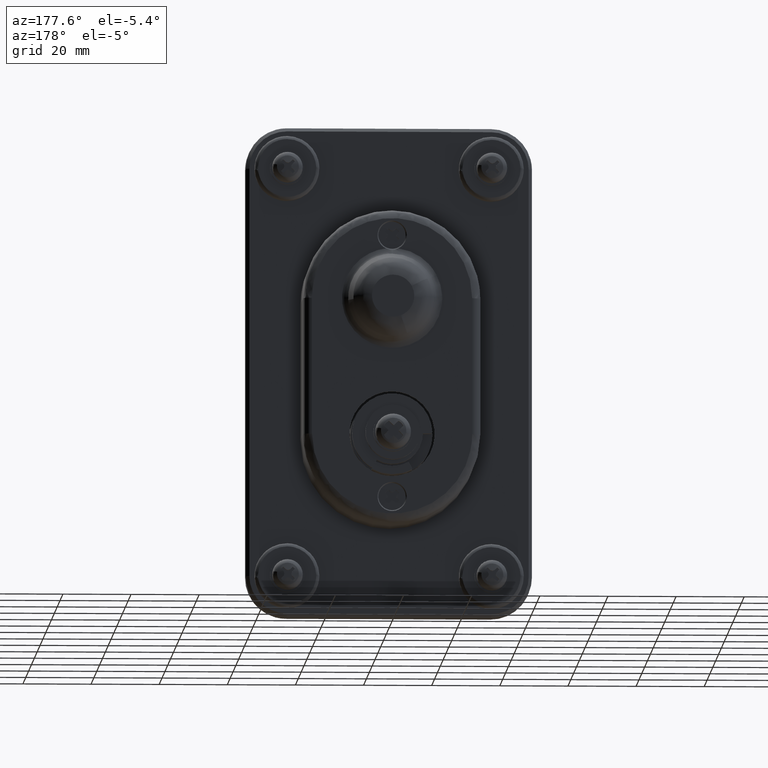
[diagram: clean part render]
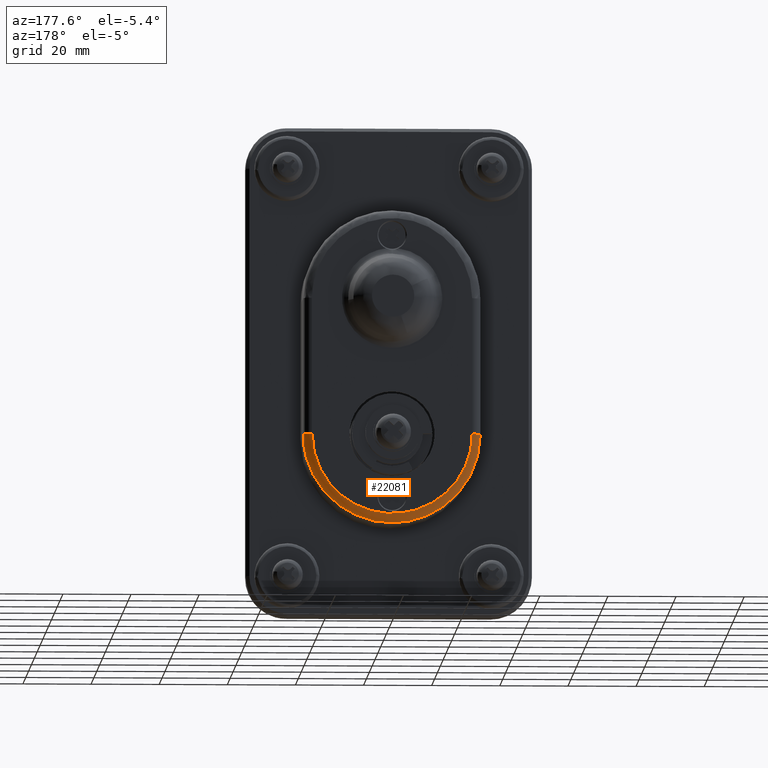
[diagram: same view with one face highlighted and labeled with its STEP entity id]
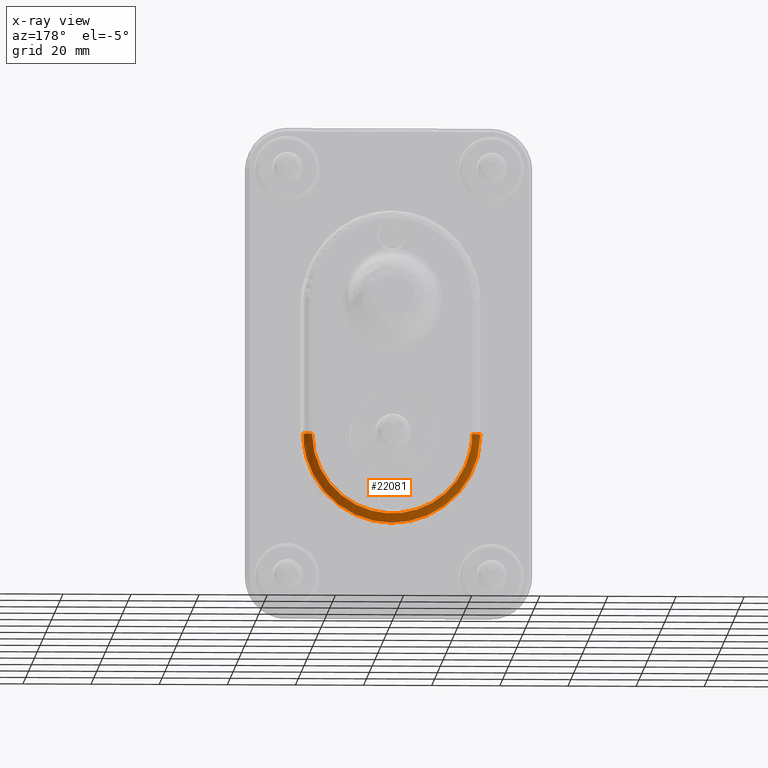
[diagram: x-ray of the same camera — body ghosted, the highlighted face saturated]
A machine part, auxiliary view. The second image highlights one B-rep face of the part: STEP entity #22081.
The next image is the same camera in x-ray: the body ghosted, the highlighted face saturated — about 0% of this face is hidden behind the body in this view.
In plain terms, the highlighted face is a freeform B-spline surface patch.
Its self-contained STEP definition (entity closure, byte-faithful):
#21992=CARTESIAN_POINT('',(-0.006084245505832,23.089522475517068,3.310851038810661));
#21993=CARTESIAN_POINT('',(-0.006084245505832,26.884830832791586,-23.157225171723020));
#21994=CARTESIAN_POINT('',(-0.006084245505832,0.146558664227062,-23.325228901398205));
#21995=CARTESIAN_POINT('',(-0.006084245505832,-26.913933211671047,-23.495257223846824));
#21996=CARTESIAN_POINT('',(-0.006084245505832,-23.091861687275141,3.294496404329445));
#21997=CARTESIAN_POINT('',(0.194348338898123,25.928138161891571,3.717885601953565));
#21998=CARTESIAN_POINT('',(0.194348338898123,30.190040050887760,-26.004164197651178));
#21999=CARTESIAN_POINT('',(0.194348338898123,0.164576521612391,-26.192822231586341));
#22000=CARTESIAN_POINT('',(0.194348338898123,-30.222720263378474,-26.383753760835539));
#22001=CARTESIAN_POINT('',(0.194348338898123,-25.930764955325671,3.699520335938817));
#22002=CARTESIAN_POINT('',(-2.673376474076068,25.730798224456258,3.689588648755501));
#22003=CARTESIAN_POINT('',(-2.673376474076069,29.960262633874070,-25.806245623482972));
#22004=CARTESIAN_POINT('',(-2.673376474076069,0.163323924134611,-25.993467774734182));
#22005=CARTESIAN_POINT('',(-2.673376474076069,-29.992694116159978,-26.182946117649607));
#22006=CARTESIAN_POINT('',(-2.673376474076068,-25.733405025275566,3.671363161402208));
#22014=(BOUNDED_SURFACE()B_SPLINE_SURFACE(2,2,((#21992,#21997,#22002),(#21993,#21998,#22003),(#21994,#21999,#22004),(#21995,#22000,#22005),(#21996,#22001,#22006)),.UNSPECIFIED.,.F.,.F.,.U.)B_SPLINE_SURFACE_WITH_KNOTS((3,2,3),(3,3),(0.0,47.276673621202740,94.924064125560420),(0.0,4.555926112079249),.UNSPECIFIED.)GEOMETRIC_REPRESENTATION_ITEM()RATIONAL_B_SPLINE_SURFACE(((0.902826940689574,0.594105060915144,0.907855665216873),(0.597094758331361,0.392918068549904,0.600420561894610),(0.913811094967896,0.601333181114613,0.918901000972554),(0.594611248300539,0.391283795344656,0.597923218772148),(0.907659970886843,0.597285435326169,0.912715615277074)))REPRESENTATION_ITEM('')SURFACE());
#22015=CARTESIAN_POINT('',(0.0,-23.499999999939401,8.750261E-012));
#22016=VERTEX_POINT('',#22015);
#22017=CARTESIAN_POINT('',(-2.499999999999945,-25.999999999939401,8.020435E-012));
#22018=VERTEX_POINT('',#22017);
#22019=CARTESIAN_POINT('',(0.0,-23.499999999939401,8.750261E-012));
#22020=CARTESIAN_POINT('',(0.0,-25.999999999939405,8.020435E-012));
#22021=CARTESIAN_POINT('',(-2.500000000000000,-25.999999999939401,8.020435E-012));
#22029=(BOUNDED_CURVE()B_SPLINE_CURVE(2,(#22019,#22020,#22021),.UNSPECIFIED.,.F.,.U.)CURVE()GEOMETRIC_REPRESENTATION_ITEM()QUASI_UNIFORM_CURVE()RATIONAL_B_SPLINE_CURVE((1.0,0.707106781186548,1.0))REPRESENTATION_ITEM(''));
#22030=EDGE_CURVE('',#22016,#22018,#22029,.T.);
#22031=ORIENTED_EDGE('',*,*,#22030,.T.);
#22032=CARTESIAN_POINT('',(-2.499999999999945,26.000000000074099,1.560426E-011));
#22033=VERTEX_POINT('',#22032);
#22034=CARTESIAN_POINT('',(-2.499999999999945,26.000000000074099,1.561062E-011));
#22035=CARTESIAN_POINT('',(-2.499999999999945,26.000000000074095,-25.999999999987391));
#22036=CARTESIAN_POINT('',(-2.499999999999945,7.109298E-011,-25.999999999991189));
#22037=CARTESIAN_POINT('',(-2.499999999999945,-25.999999999931898,-25.999999999994984));
#22038=CARTESIAN_POINT('',(-2.499999999999945,-25.999999999939490,8.008370E-012));
#22046=(BOUNDED_CURVE()B_SPLINE_CURVE(2,(#22034,#22035,#22036,#22037,#22038),.UNSPECIFIED.,.F.,.U.)B_SPLINE_CURVE_WITH_KNOTS((3,2,3),(0.0,0.500000000000000,1.0),.UNSPECIFIED.)CURVE()GEOMETRIC_REPRESENTATION_ITEM()RATIONAL_B_SPLINE_CURVE((1.0,0.707106781186599,1.0,0.707106781186599,1.0))REPRESENTATION_ITEM(''));
#22047=EDGE_CURVE('',#22033,#22018,#22046,.T.);
#22048=ORIENTED_EDGE('',*,*,#22047,.F.);
#22049=CARTESIAN_POINT('',(0.0,23.500000000074451,1.560487E-011));
#22050=VERTEX_POINT('',#22049);
#22051=CARTESIAN_POINT('',(-2.499999999999945,26.000000000074099,1.560426E-011));
#22052=CARTESIAN_POINT('',(0.0,26.000000000074447,1.634017E-011));
#22053=CARTESIAN_POINT('',(0.0,23.500000000074451,1.560487E-011));
#22061=(BOUNDED_CURVE()B_SPLINE_CURVE(2,(#22051,#22052,#22053),.UNSPECIFIED.,.F.,.U.)CURVE()GEOMETRIC_REPRESENTATION_ITEM()QUASI_UNIFORM_CURVE()RATIONAL_B_SPLINE_CURVE((1.0,0.707106781186548,1.0))REPRESENTATION_ITEM(''));
#22062=EDGE_CURVE('',#22033,#22050,#22061,.T.);
#22063=ORIENTED_EDGE('',*,*,#22062,.T.);
#22064=CARTESIAN_POINT('',(0.0,-23.499999999939401,8.750261E-012));
#22065=CARTESIAN_POINT('',(0.0,-23.499999999932641,-23.499999999994625));
#22066=CARTESIAN_POINT('',(0.0,7.073321E-011,-23.499999999991189));
#22067=CARTESIAN_POINT('',(0.0,23.500000000074103,-23.499999999987764));
#22068=CARTESIAN_POINT('',(0.0,23.500000000074451,1.560487E-011));
#22076=(BOUNDED_CURVE()B_SPLINE_CURVE(2,(#22064,#22065,#22066,#22067,#22068),.UNSPECIFIED.,.F.,.U.)B_SPLINE_CURVE_WITH_KNOTS((3,2,3),(0.0,0.500000000000000,1.0),.UNSPECIFIED.)CURVE()GEOMETRIC_REPRESENTATION_ITEM()RATIONAL_B_SPLINE_CURVE((1.0,0.707106781186599,1.0,0.707106781186599,1.0))REPRESENTATION_ITEM(''));
#22077=EDGE_CURVE('',#22016,#22050,#22076,.T.);
#22078=ORIENTED_EDGE('',*,*,#22077,.F.);
#22079=EDGE_LOOP('',(#22031,#22048,#22063,#22078));
#22080=FACE_OUTER_BOUND('',#22079,.T.);
#22081=ADVANCED_FACE('',(#22080),#22014,.T.);